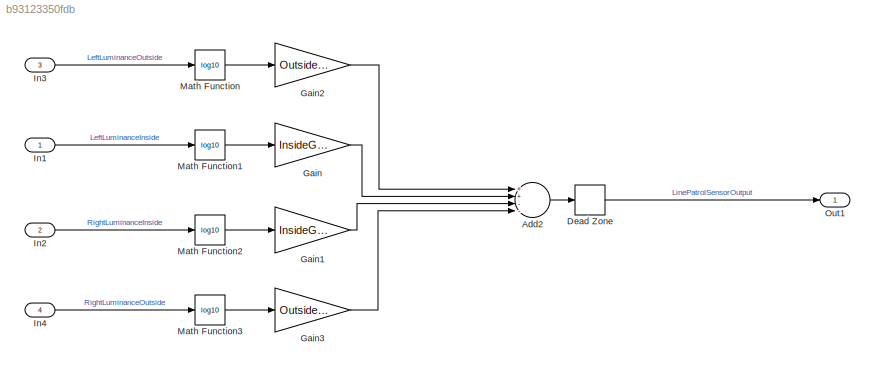
MODEL slx_b93123350fdb
KIND model
CONFIG AbsTol = auto
CONFIG EnableMultiTasking = off
CONFIG FixedStep = auto
CONFIG MaxStep = auto
CONFIG MinStep = auto
CONFIG RelTol = 1e-3
CONFIG SampleTimeConstraint = Unconstrained
CONFIG Solver = FixedStepDiscrete
CONFIG SolverName = FixedStepDiscrete
CONFIG StartTime = 0.0
CONFIG StopTime = 10
WORKSPACE source: MAT-file member
WORKSPACE MCOS: class17 (value not decoded)
BLOCK [Sum] Add2
  InputSameDT = off
  Inputs = ++--
  OutDataTypeStr = Inherit: Inherit via internal rule
  Ports = [4, 1]
  SaturateOnIntegerOverflow = off
BLOCK [DeadZone] Dead Zone
  LowerValue = -0.4
  UpperValue = 0.4
BLOCK [Gain] Gain
  Gain = InsideGain
  OutDataTypeStr = Inherit: Inherit via internal rule
  ParamDataTypeStr = Inherit: Inherit via internal rule
  SaturateOnIntegerOverflow = off
BLOCK [Gain] Gain1
  Gain = InsideGain
  OutDataTypeStr = Inherit: Inherit via internal rule
  ParamDataTypeStr = Inherit: Inherit via internal rule
  SaturateOnIntegerOverflow = off
BLOCK [Gain] Gain2
  Gain = OutsideGain
  OutDataTypeStr = Inherit: Inherit via internal rule
  ParamDataTypeStr = Inherit: Inherit via internal rule
  SaturateOnIntegerOverflow = off
BLOCK [Gain] Gain3
  Gain = OutsideGain
  OutDataTypeStr = Inherit: Inherit via internal rule
  ParamDataTypeStr = Inherit: Inherit via internal rule
  SaturateOnIntegerOverflow = off
BLOCK [Inport] In1
  IconDisplay = Port number
BLOCK [Inport] In2
  IconDisplay = Port number
  Port = 2
BLOCK [Inport] In3
  IconDisplay = Port number
  Port = 3
BLOCK [Inport] In4
  IconDisplay = Port number
  Port = 4
BLOCK [Math] Math Function
  Operator = log10
  Ports = [1, 1]
BLOCK [Math] Math Function1
  Operator = log10
  Ports = [1, 1]
BLOCK [Math] Math Function2
  Operator = log10
  Ports = [1, 1]
BLOCK [Math] Math Function3
  Operator = log10
  Ports = [1, 1]
BLOCK [Outport] Out1
  IconDisplay = Port number
LINE Add2:1 -> Dead Zone:1
LINE Dead Zone:1 -> Out1:1
LINE Gain1:1 -> Add2:3
LINE Gain2:1 -> Add2:1
LINE Gain3:1 -> Add2:4
LINE Gain:1 -> Add2:2
LINE In1:1 -> Math Function1:1
LINE In2:1 -> Math Function2:1
LINE In3:1 -> Math Function:1
LINE In4:1 -> Math Function3:1
LINE Math Function1:1 -> Gain:1
LINE Math Function2:1 -> Gain1:1
LINE Math Function3:1 -> Gain3:1
LINE Math Function:1 -> Gain2:1
